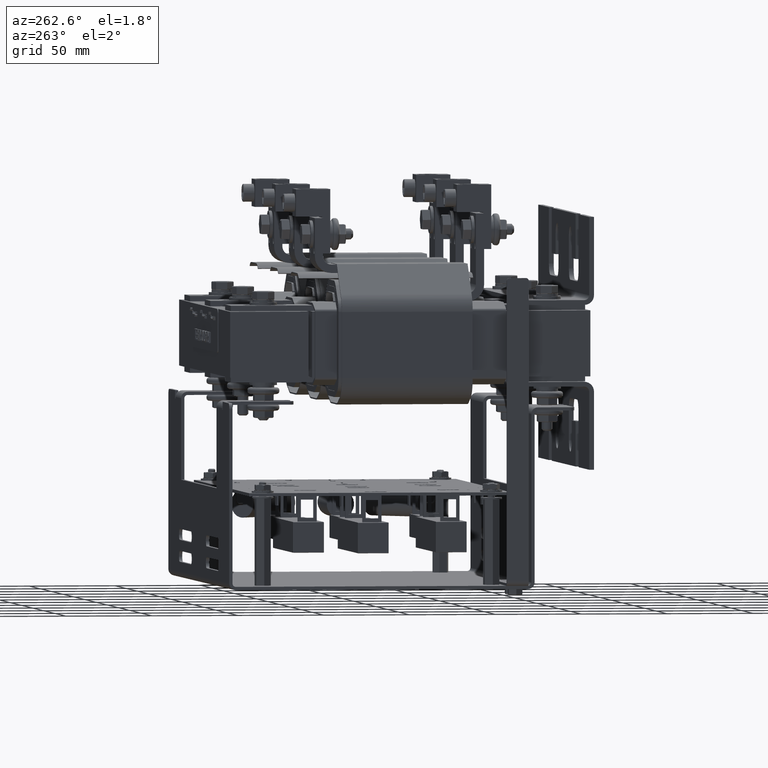
[diagram: clean part render]
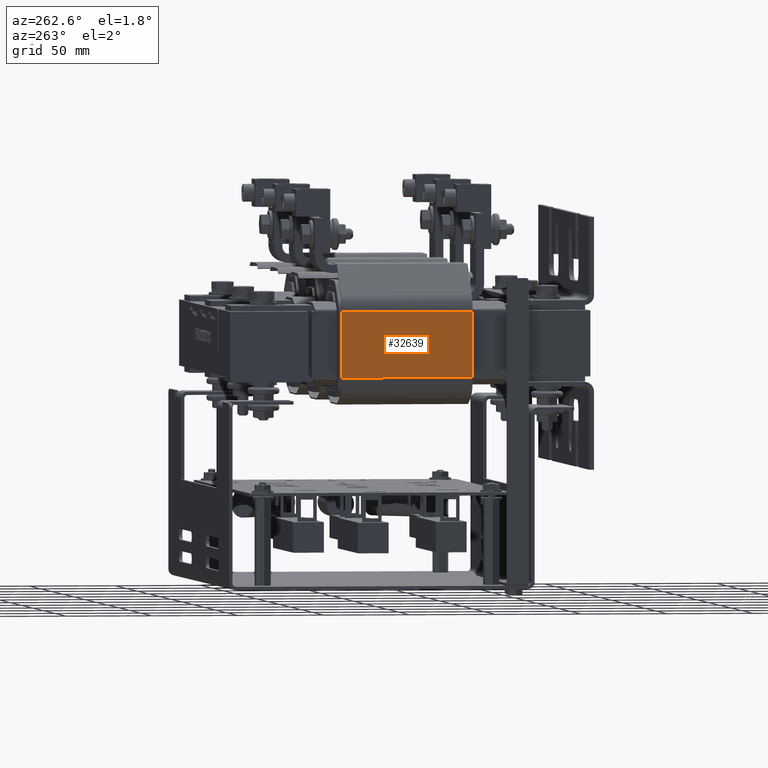
[diagram: same view with one face highlighted and labeled with its STEP entity id]
A machine part, auxiliary view. The second image highlights one B-rep face of the part: STEP entity #32639.
In plain terms, the highlighted planar face has unit normal (-1, -0, -0).
Its self-contained STEP definition (entity closure, byte-faithful):
#4710=FACE_OUTER_BOUND('',#6575,.T.);
#6575=EDGE_LOOP('',(#27011,#27012,#27013,#27014));
#9453=LINE('',#54512,#12543);
#9454=LINE('',#54515,#12544);
#9455=LINE('',#54517,#12545);
#9456=LINE('',#54518,#12546);
#12543=VECTOR('',#42126,0.393700787401575);
#12544=VECTOR('',#42129,0.393700787401575);
#12545=VECTOR('',#42130,0.393700787401575);
#12546=VECTOR('',#42131,0.393700787401575);
#15554=VERTEX_POINT('',#54508);
#15555=VERTEX_POINT('',#54510);
#15556=VERTEX_POINT('',#54514);
#15557=VERTEX_POINT('',#54516);
#19556=EDGE_CURVE('',#15554,#15555,#9453,.T.);
#19557=EDGE_CURVE('',#15556,#15554,#9454,.T.);
#19558=EDGE_CURVE('',#15557,#15555,#9455,.T.);
#19559=EDGE_CURVE('',#15556,#15557,#9456,.T.);
#27011=ORIENTED_EDGE('',*,*,#19557,.T.);
#27012=ORIENTED_EDGE('',*,*,#19556,.T.);
#27013=ORIENTED_EDGE('',*,*,#19558,.F.);
#27014=ORIENTED_EDGE('',*,*,#19559,.F.);
#31159=PLANE('',#35678);
#32639=ADVANCED_FACE('',(#4710),#31159,.T.);
#35678=AXIS2_PLACEMENT_3D('',#54513,#42127,#42128);
#42126=DIRECTION('',(0.,0.,1.));
#42127=DIRECTION('center_axis',(-1.,1.80316537437918E-12,0.));
#42128=DIRECTION('ref_axis',(-1.80316537437918E-12,-1.,0.));
#42129=DIRECTION('',(-1.80316537437918E-12,-1.,0.));
#42130=DIRECTION('',(-1.80316537437918E-12,-1.,0.));
#42131=DIRECTION('',(0.,0.,1.));
#54508=CARTESIAN_POINT('',(-2.7799999999647,5.729100483609E-12,0.));
#54510=CARTESIAN_POINT('',(-2.7799999999647,5.729100483609E-12,3.));
#54512=CARTESIAN_POINT('',(-2.7799999999647,5.729100483609E-12,0.));
#54513=CARTESIAN_POINT('Origin',(-2.779999999962,1.50000000000481,0.));
#54514=CARTESIAN_POINT('',(-2.779999999962,1.50000000000481,0.));
#54515=CARTESIAN_POINT('',(-2.779999999962,1.50000000000481,0.));
#54516=CARTESIAN_POINT('',(-2.779999999962,1.50000000000481,3.));
#54517=CARTESIAN_POINT('',(-2.779999999962,1.50000000000481,3.));
#54518=CARTESIAN_POINT('',(-2.779999999962,1.50000000000481,0.));